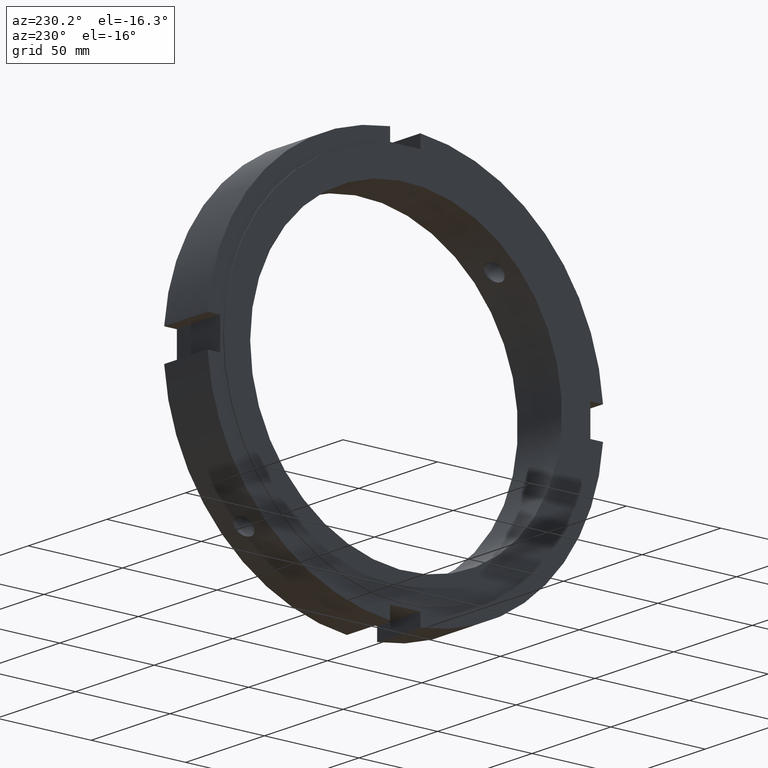
[diagram: clean part render]
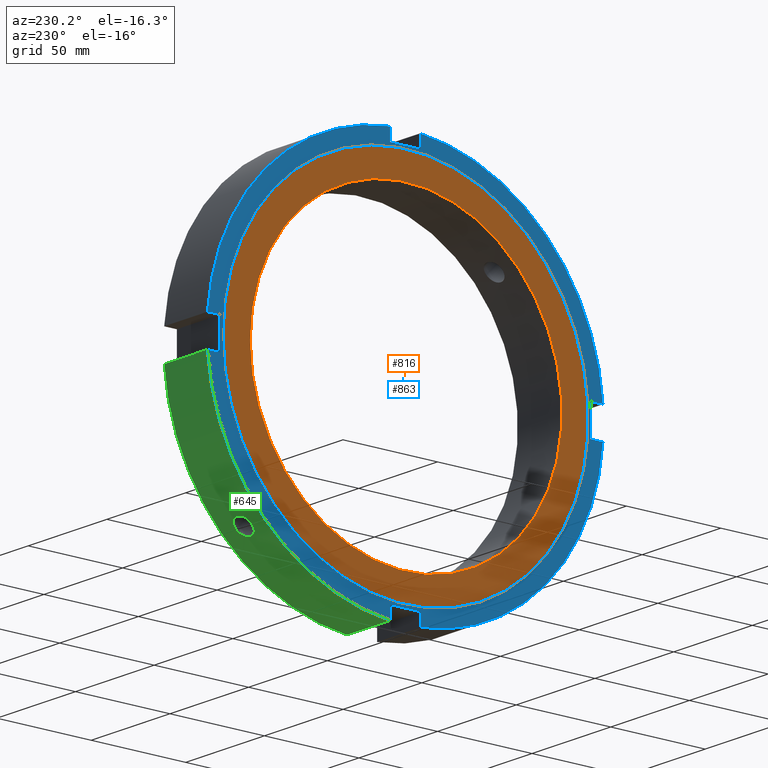
[diagram: same view with three faces highlighted in distinct colors, each labeled with its STEP entity id]
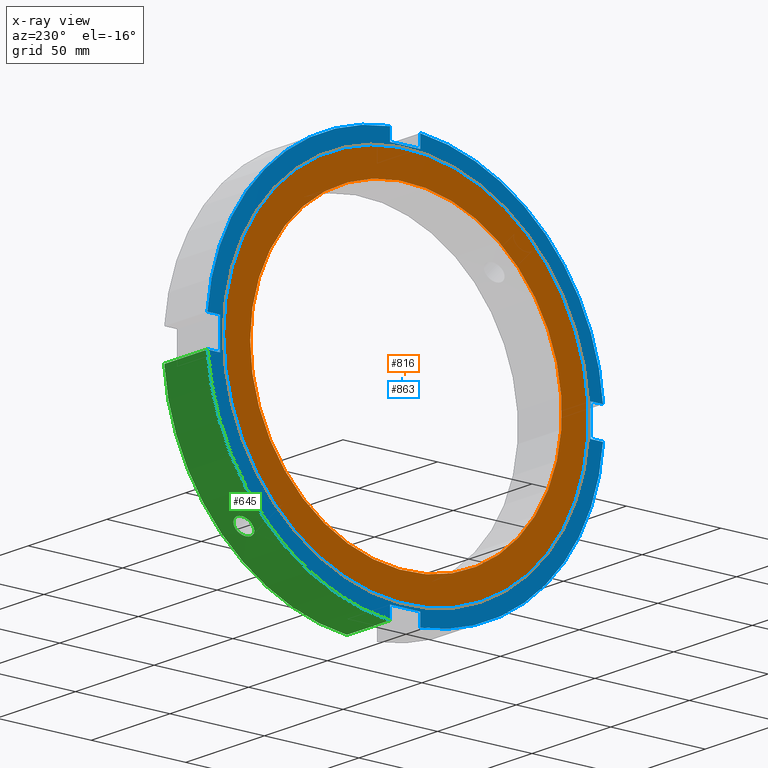
[diagram: x-ray of the same camera — body ghosted, the three highlighted faces saturated]
A machine part, auxiliary view with three faces highlighted in distinct colors.
The next image is the same camera in x-ray (body ghosted, the three faces saturated) — at least one of them is partly hidden behind the body in this view.
Their STEP definitions:

[orange] entity #816 — the highlighted planar face has unit normal (-1, 0, 0).
#789=CARTESIAN_POINT('',(-2.550462E-014,89.500000000000000,0.0));
#790=DIRECTION('',(-1.0,0.0,0.0));
#791=DIRECTION('',(0.0,0.0,1.0));
#792=AXIS2_PLACEMENT_3D('',#789,#790,#791);
#793=PLANE('',#792);
#794=CARTESIAN_POINT('',(-2.664535E-014,96.500000000000000,0.0));
#795=VERTEX_POINT('',#794);
#796=CARTESIAN_POINT('',(-2.664535E-014,0.0,0.0));
#797=DIRECTION('',(1.0,0.0,0.0));
#798=DIRECTION('',(0.0,1.0,0.0));
#799=AXIS2_PLACEMENT_3D('',#796,#797,#798);
#800=CIRCLE('',#799,96.500000000000000);
#801=EDGE_CURVE('',#795,#795,#800,.T.);
#802=ORIENTED_EDGE('',*,*,#801,.F.);
#803=EDGE_LOOP('',(#802));
#804=FACE_OUTER_BOUND('',#803,.T.);
#805=CARTESIAN_POINT('',(-2.436388E-014,82.500000000000000,0.0));
#806=VERTEX_POINT('',#805);
#807=CARTESIAN_POINT('',(-2.436419E-014,0.0,0.0));
#808=DIRECTION('',(1.0,0.0,0.0));
#809=DIRECTION('',(0.0,1.0,0.0));
#810=AXIS2_PLACEMENT_3D('',#807,#808,#809);
#811=CIRCLE('',#810,82.500000000000000);
#812=EDGE_CURVE('',#806,#806,#811,.T.);
#813=ORIENTED_EDGE('',*,*,#812,.T.);
#814=EDGE_LOOP('',(#813));
#815=FACE_BOUND('',#814,.T.);
#816=ADVANCED_FACE('',(#804,#815),#793,.T.);

[blue] entity #863 — the highlighted planar face has unit normal (-1, 0, 0).
#249=CARTESIAN_POINT('',(0.499999999999972,-8.000000000000012,-98.0));
#250=VERTEX_POINT('',#249);
#251=CARTESIAN_POINT('',(0.499999999999972,-8.000000000000014,-104.694794521981850));
#252=VERTEX_POINT('',#251);
#253=CARTESIAN_POINT('',(0.499999999999972,-8.000000000000007,-98.0));
#254=DIRECTION('',(0.0,0.0,-1.0));
#255=VECTOR('',#254,6.694794521981834);
#256=LINE('',#253,#255);
#257=EDGE_CURVE('',#250,#252,#256,.T.);
#289=CARTESIAN_POINT('',(0.499999999999972,7.999999999999975,-104.694794521981850));
#290=VERTEX_POINT('',#289);
#291=CARTESIAN_POINT('',(0.499999999999972,7.999999999999977,-98.0));
#292=VERTEX_POINT('',#291);
#293=CARTESIAN_POINT('',(0.499999999999972,7.999999999999971,-104.694794521981850));
#294=DIRECTION('',(0.0,0.0,1.0));
#295=VECTOR('',#294,6.694794521981848);
#296=LINE('',#293,#295);
#297=EDGE_CURVE('',#290,#292,#296,.T.);
#329=CARTESIAN_POINT('',(0.499999999999972,7.999999999999979,-97.999999999999986));
#330=DIRECTION('',(0.0,-1.0,0.0));
#331=VECTOR('',#330,15.999999999999993);
#332=LINE('',#329,#331);
#333=EDGE_CURVE('',#292,#250,#332,.T.);
#351=CARTESIAN_POINT('',(0.499999999999972,-98.0,8.000000000000005));
#352=VERTEX_POINT('',#351);
#353=CARTESIAN_POINT('',(0.499999999999972,-104.694794521981850,8.000000000000009));
#354=VERTEX_POINT('',#353);
#355=CARTESIAN_POINT('',(0.499999999999972,-98.0,8.000000000000005));
#356=DIRECTION('',(0.0,-1.0,0.0));
#357=VECTOR('',#356,6.694794521981834);
#358=LINE('',#355,#357);
#359=EDGE_CURVE('',#352,#354,#358,.T.);
#391=CARTESIAN_POINT('',(0.499999999999972,-104.694794521981850,-7.999999999999981));
#392=VERTEX_POINT('',#391);
#393=CARTESIAN_POINT('',(0.499999999999972,-98.0,-7.999999999999984));
#394=VERTEX_POINT('',#393);
#395=CARTESIAN_POINT('',(0.499999999999972,-104.694794521981830,-7.999999999999981));
#396=DIRECTION('',(0.0,1.0,0.0));
#397=VECTOR('',#396,6.694794521981834);
#398=LINE('',#395,#397);
#399=EDGE_CURVE('',#392,#394,#398,.T.);
#431=CARTESIAN_POINT('',(0.499999999999972,-98.0,-7.999999999999984));
#432=DIRECTION('',(0.0,0.0,1.0));
#433=VECTOR('',#432,15.999999999999991);
#434=LINE('',#431,#433);
#435=EDGE_CURVE('',#394,#352,#434,.T.);
#453=CARTESIAN_POINT('',(0.499999999999972,8.0,98.0));
#454=VERTEX_POINT('',#453);
#455=CARTESIAN_POINT('',(0.499999999999972,8.000000000000002,104.694794521981850));
#456=VERTEX_POINT('',#455);
#457=CARTESIAN_POINT('',(0.499999999999972,8.000000000000011,98.0));
#458=DIRECTION('',(0.0,0.0,1.0));
#459=VECTOR('',#458,6.694794521981834);
#460=LINE('',#457,#459);
#461=EDGE_CURVE('',#454,#456,#460,.T.);
#493=CARTESIAN_POINT('',(0.499999999999972,-7.999999999999989,104.694794521981850));
#494=VERTEX_POINT('',#493);
#495=CARTESIAN_POINT('',(0.499999999999972,-7.999999999999989,98.0));
#496=VERTEX_POINT('',#495);
#497=CARTESIAN_POINT('',(0.499999999999972,-7.999999999999986,104.694794521981850));
#498=DIRECTION('',(0.0,0.0,-1.0));
#499=VECTOR('',#498,6.694794521981848);
#500=LINE('',#497,#499);
#501=EDGE_CURVE('',#494,#496,#500,.T.);
#533=CARTESIAN_POINT('',(0.499999999999972,-7.999999999999993,98.0));
#534=DIRECTION('',(0.0,1.0,0.0));
#535=VECTOR('',#534,15.999999999999993);
#536=LINE('',#533,#535);
#537=EDGE_CURVE('',#496,#454,#536,.T.);
#565=CARTESIAN_POINT('',(0.499999999999972,104.694794521981850,7.999999999999995));
#566=VERTEX_POINT('',#565);
#573=CARTESIAN_POINT('',(0.499999999999972,0.0,0.0));
#574=DIRECTION('',(1.0,0.0,0.0));
#575=DIRECTION('',(0.0,1.0,0.0));
#576=AXIS2_PLACEMENT_3D('',#573,#574,#575);
#577=CIRCLE('',#576,105.0);
#578=EDGE_CURVE('',#566,#456,#577,.T.);
#597=CARTESIAN_POINT('',(0.499999999999972,0.0,0.0));
#598=DIRECTION('',(1.0,0.0,0.0));
#599=DIRECTION('',(0.0,1.0,0.0));
#600=AXIS2_PLACEMENT_3D('',#597,#598,#599);
#601=CIRCLE('',#600,105.0);
#602=EDGE_CURVE('',#494,#354,#601,.T.);
#616=CARTESIAN_POINT('',(0.499999999999972,104.694794521981850,-7.999999999999995));
#617=VERTEX_POINT('',#616);
#618=CARTESIAN_POINT('',(0.499999999999972,0.0,0.0));
#619=DIRECTION('',(1.0,0.0,0.0));
#620=DIRECTION('',(0.0,1.0,0.0));
#621=AXIS2_PLACEMENT_3D('',#618,#619,#620);
#622=CIRCLE('',#621,105.0);
#623=EDGE_CURVE('',#290,#617,#622,.T.);
#660=CARTESIAN_POINT('',(0.499999999999972,0.0,0.0));
#661=DIRECTION('',(1.0,0.0,0.0));
#662=DIRECTION('',(0.0,1.0,0.0));
#663=AXIS2_PLACEMENT_3D('',#660,#661,#662);
#664=CIRCLE('',#663,105.0);
#665=EDGE_CURVE('',#392,#252,#664,.T.);
#729=CARTESIAN_POINT('',(0.499999999999972,98.0,-7.999999999999995));
#730=VERTEX_POINT('',#729);
#731=CARTESIAN_POINT('',(0.499999999999972,98.0,-7.999999999999995));
#732=DIRECTION('',(0.0,1.0,0.0));
#733=VECTOR('',#732,6.694794521981848);
#734=LINE('',#731,#733);
#735=EDGE_CURVE('',#730,#617,#734,.T.);
#753=CARTESIAN_POINT('',(0.499999999999972,98.0,7.999999999999995));
#754=VERTEX_POINT('',#753);
#755=CARTESIAN_POINT('',(0.499999999999972,104.694794521981850,7.999999999999995));
#756=DIRECTION('',(0.0,-1.0,0.0));
#757=VECTOR('',#756,6.694794521981834);
#758=LINE('',#755,#757);
#759=EDGE_CURVE('',#566,#754,#758,.T.);
#777=CARTESIAN_POINT('',(0.499999999999972,98.0,7.999999999999995));
#778=DIRECTION('',(0.0,0.0,-1.0));
#779=VECTOR('',#778,15.999999999999989);
#780=LINE('',#777,#779);
#781=EDGE_CURVE('',#754,#730,#780,.T.);
#822=CARTESIAN_POINT('',(0.499999999999972,96.500000000000000,0.0));
#823=VERTEX_POINT('',#822);
#824=CARTESIAN_POINT('',(0.499999999999972,0.0,0.0));
#825=DIRECTION('',(1.0,0.0,0.0));
#826=DIRECTION('',(0.0,1.0,0.0));
#827=AXIS2_PLACEMENT_3D('',#824,#825,#826);
#828=CIRCLE('',#827,96.500000000000000);
#829=EDGE_CURVE('',#823,#823,#828,.T.);
#837=CARTESIAN_POINT('',(0.499999999999972,100.750000000000000,0.0));
#838=DIRECTION('',(-1.0,0.0,0.0));
#839=DIRECTION('',(0.0,0.0,1.0));
#840=AXIS2_PLACEMENT_3D('',#837,#838,#839);
#841=PLANE('',#840);
#842=ORIENTED_EDGE('',*,*,#257,.T.);
#843=ORIENTED_EDGE('',*,*,#665,.F.);
#844=ORIENTED_EDGE('',*,*,#399,.T.);
#845=ORIENTED_EDGE('',*,*,#435,.T.);
#846=ORIENTED_EDGE('',*,*,#359,.T.);
#847=ORIENTED_EDGE('',*,*,#602,.F.);
#848=ORIENTED_EDGE('',*,*,#501,.T.);
#849=ORIENTED_EDGE('',*,*,#537,.T.);
#850=ORIENTED_EDGE('',*,*,#461,.T.);
#851=ORIENTED_EDGE('',*,*,#578,.F.);
#852=ORIENTED_EDGE('',*,*,#759,.T.);
#853=ORIENTED_EDGE('',*,*,#781,.T.);
#854=ORIENTED_EDGE('',*,*,#735,.T.);
#855=ORIENTED_EDGE('',*,*,#623,.F.);
#856=ORIENTED_EDGE('',*,*,#297,.T.);
#857=ORIENTED_EDGE('',*,*,#333,.T.);
#858=EDGE_LOOP('',(#842,#843,#844,#845,#846,#847,#848,#849,#850,#851,#852,#853,#854,#855,#856,#857));
#859=FACE_OUTER_BOUND('',#858,.T.);
#860=ORIENTED_EDGE('',*,*,#829,.T.);
#861=EDGE_LOOP('',(#860));
#862=FACE_BOUND('',#861,.T.);
#863=ADVANCED_FACE('',(#859,#862),#841,.T.);

[green] entity #645 — the highlighted cylindrical surface (partial cylindrical patch) has radius 105 mm, axis along (1, 0, 0).
#161=CARTESIAN_POINT('',(13.999999999999984,70.587178185098381,-77.733199315769653));
#162=VERTEX_POINT('',#161);
#163=CARTESIAN_POINT('',(13.999999999999984,70.587178185098381,-77.733199315769639));
#164=CARTESIAN_POINT('',(14.634571136471472,70.587178185098381,-77.733199315769639));
#165=CARTESIAN_POINT('',(15.311372523950252,70.681358470823866,-77.648001809649955));
#166=CARTESIAN_POINT('',(16.556298304530213,71.062247707642413,-77.299570315646207));
#167=CARTESIAN_POINT('',(17.124431001535743,71.348719268373188,-77.036106571302369));
#168=CARTESIAN_POINT('',(18.021590047831673,72.004706378749972,-76.423319190801720));
#169=CARTESIAN_POINT('',(18.410453091665833,72.417934981492238,-76.033086775509958));
#170=CARTESIAN_POINT('',(18.926160779767752,73.314446101556157,-75.169006807433362));
#171=CARTESIAN_POINT('',(19.052999999999983,73.797502552170627,-74.694921497004373));
#172=CARTESIAN_POINT('',(19.052999999999983,74.694921497004358,-73.797502552170627));
#173=CARTESIAN_POINT('',(18.926160779767752,75.169006807433362,-73.314446101556157));
#174=CARTESIAN_POINT('',(18.410453091665829,76.033086775509958,-72.417934981492252));
#175=CARTESIAN_POINT('',(18.021590047831666,76.423319190801706,-72.004706378749972));
#176=CARTESIAN_POINT('',(17.124431001535740,77.036106571302355,-71.348719268373202));
#177=CARTESIAN_POINT('',(16.556298304530202,77.299570315646193,-71.062247707642427));
#178=CARTESIAN_POINT('',(15.311372523950244,77.648001809649941,-70.681358470823881));
#179=CARTESIAN_POINT('',(14.634571136471470,77.733199315769625,-70.587178185098409));
#180=CARTESIAN_POINT('',(13.365428863528496,77.733199315769625,-70.587178185098409));
#181=CARTESIAN_POINT('',(12.688627476049717,77.648001809649955,-70.681358470823895));
#182=CARTESIAN_POINT('',(11.443701695469757,77.299570315646193,-71.062247707642442));
#183=CARTESIAN_POINT('',(10.875568998464228,77.036106571302355,-71.348719268373202));
#184=CARTESIAN_POINT('',(9.978409952168303,76.423319190801706,-72.004706378749972));
#185=CARTESIAN_POINT('',(9.589546908334141,76.033086775509958,-72.417934981492252));
#186=CARTESIAN_POINT('',(9.073839220232218,75.169006807433362,-73.314446101556157));
#187=CARTESIAN_POINT('',(8.946999999999985,74.694921497004344,-73.797502552170627));
#188=CARTESIAN_POINT('',(8.946999999999983,73.797502552170613,-74.694921497004358));
#189=CARTESIAN_POINT('',(9.073839220232216,73.314446101556143,-75.169006807433391));
#190=CARTESIAN_POINT('',(9.589546908334139,72.417934981492238,-76.033086775509972));
#191=CARTESIAN_POINT('',(9.978409952168299,72.004706378749958,-76.423319190801720));
#192=CARTESIAN_POINT('',(10.875568998464225,71.348719268373188,-77.036106571302369));
#193=CARTESIAN_POINT('',(11.443701695469755,71.062247707642413,-77.299570315646207));
#194=CARTESIAN_POINT('',(12.688627476049717,70.681358470823866,-77.648001809649955));
#195=CARTESIAN_POINT('',(13.365428863528496,70.587178185098381,-77.733199315769639));
#196=CARTESIAN_POINT('',(13.999999999999984,70.587178185098381,-77.733199315769639));
#197=B_SPLINE_CURVE_WITH_KNOTS('',3,(#163,#164,#165,#166,#167,#168,#169,#170,#171,#172,#173,#174,#175,#176,#177,#178,#179,#180,#181,#182,#183,#184,#185,#186,#187,#188,#189,#190,#191,#192,#193,#194,#195,#196),.UNSPECIFIED.,.T.,.U.,(4,2,2,2,2,2,2,2,2,2,2,2,2,2,2,2,4),(0.0,0.190371340941446,0.380742681882893,0.571113988320057,0.761485294757221,0.951856601194385,1.142227907631549,1.332599248572995,1.522970589514441,1.713341930455887,1.903713271397333,2.094084577834497,2.284455884271662,2.474827190708826,2.665198497145990,2.855569838087436,3.045941179028882),.UNSPECIFIED.);
#198=EDGE_CURVE('',#162,#162,#197,.T.);
#289=CARTESIAN_POINT('',(0.499999999999972,7.999999999999975,-104.694794521981850));
#290=VERTEX_POINT('',#289);
#299=CARTESIAN_POINT('',(27.999999999999979,7.999999999999975,-104.694794521981850));
#300=VERTEX_POINT('',#299);
#301=CARTESIAN_POINT('',(27.999999999999979,7.999999999999976,-104.694794521981850));
#302=DIRECTION('',(-1.0,0.0,0.0));
#303=VECTOR('',#302,27.500000000000007);
#304=LINE('',#301,#303);
#305=EDGE_CURVE('',#300,#290,#304,.T.);
#610=CARTESIAN_POINT('',(14.249999999999975,0.0,0.0));
#611=DIRECTION('',(1.0,0.0,0.0));
#612=DIRECTION('',(0.0,1.0,0.0));
#613=AXIS2_PLACEMENT_3D('',#610,#611,#612);
#614=CYLINDRICAL_SURFACE('',#613,105.0);
#615=ORIENTED_EDGE('',*,*,#305,.T.);
#616=CARTESIAN_POINT('',(0.499999999999972,104.694794521981850,-7.999999999999995));
#617=VERTEX_POINT('',#616);
#618=CARTESIAN_POINT('',(0.499999999999972,0.0,0.0));
#619=DIRECTION('',(1.0,0.0,0.0));
#620=DIRECTION('',(0.0,1.0,0.0));
#621=AXIS2_PLACEMENT_3D('',#618,#619,#620);
#622=CIRCLE('',#621,105.0);
#623=EDGE_CURVE('',#290,#617,#622,.T.);
#624=ORIENTED_EDGE('',*,*,#623,.T.);
#625=CARTESIAN_POINT('',(27.999999999999979,104.694794521981850,-7.999999999999995));
#626=VERTEX_POINT('',#625);
#627=CARTESIAN_POINT('',(0.499999999999972,104.694794521981850,-7.999999999999995));
#628=DIRECTION('',(1.0,0.0,0.0));
#629=VECTOR('',#628,27.500000000000007);
#630=LINE('',#627,#629);
#631=EDGE_CURVE('',#617,#626,#630,.T.);
#632=ORIENTED_EDGE('',*,*,#631,.T.);
#633=CARTESIAN_POINT('',(27.999999999999979,0.0,0.0));
#634=DIRECTION('',(1.0,0.0,0.0));
#635=DIRECTION('',(0.0,1.0,0.0));
#636=AXIS2_PLACEMENT_3D('',#633,#634,#635);
#637=CIRCLE('',#636,105.0);
#638=EDGE_CURVE('',#300,#626,#637,.T.);
#639=ORIENTED_EDGE('',*,*,#638,.F.);
#640=EDGE_LOOP('',(#615,#624,#632,#639));
#641=FACE_OUTER_BOUND('',#640,.T.);
#642=ORIENTED_EDGE('',*,*,#198,.T.);
#643=EDGE_LOOP('',(#642));
#644=FACE_BOUND('',#643,.T.);
#645=ADVANCED_FACE('',(#641,#644),#614,.T.);